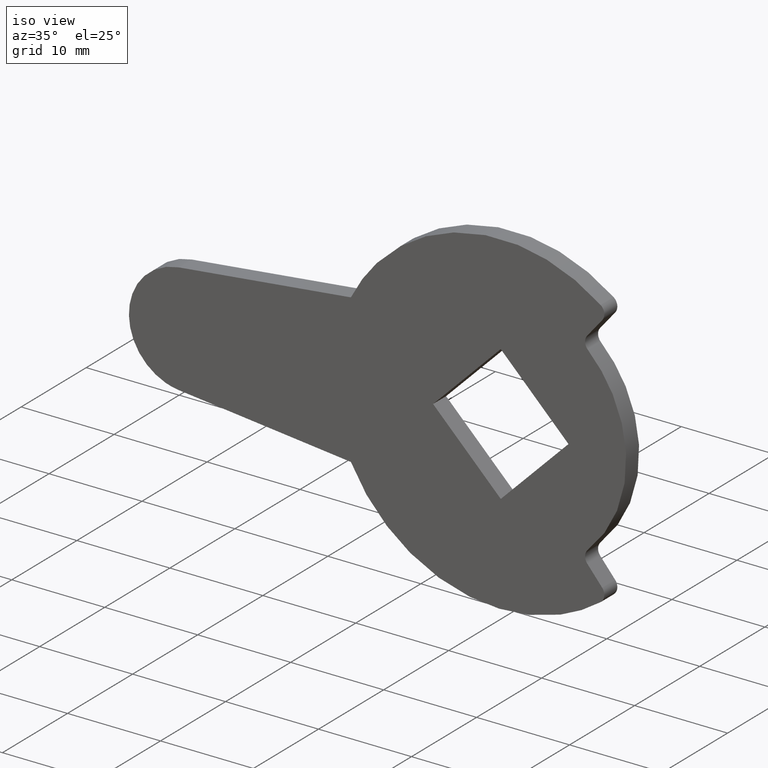
[diagram: clean part render]
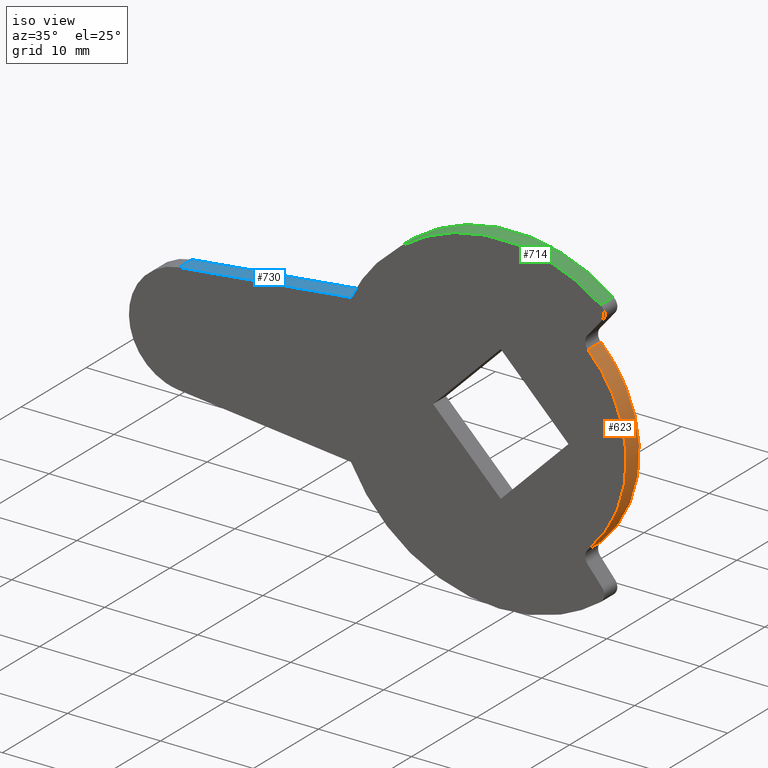
[diagram: same view with three faces highlighted in distinct colors, each labeled with its STEP entity id]
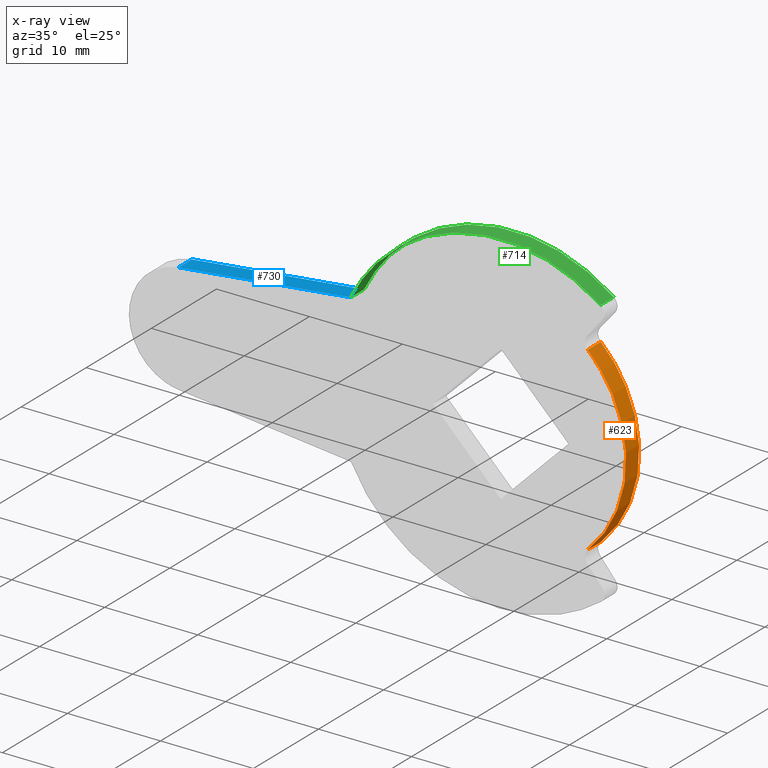
[diagram: x-ray of the same camera — body ghosted, the three highlighted faces saturated]
A machine part, iso view with three faces highlighted in distinct colors.
The next image is the same camera in x-ray (body ghosted, the three faces saturated) — at least one of them is partly hidden behind the body in this view.
Their STEP definitions:

[orange] entity #623 — the highlighted face is a freeform B-spline surface patch.
#123=CARTESIAN_POINT('',(9.370201414441402,0.0,9.718512161382490));
#124=VERTEX_POINT('',#123);
#138=CARTESIAN_POINT('',(9.370232998812860,0.0,-9.718481708830780));
#139=VERTEX_POINT('',#138);
#140=CARTESIAN_POINT('',(9.370232998812858,0.0,-9.718481708830781));
#141=CARTESIAN_POINT('',(13.500002456544811,0.0,-5.736679563118574));
#142=CARTESIAN_POINT('',(13.499993134626131,0.0,0.000021937005616));
#143=CARTESIAN_POINT('',(13.499983812707452,0.0,5.736723437129803));
#144=CARTESIAN_POINT('',(9.370201414441402,0.0,9.718512161382490));
#152=(BOUNDED_CURVE()B_SPLINE_CURVE(2,(#140,#141,#142,#143,#144),.UNSPECIFIED.,.F.,.U.)B_SPLINE_CURVE_WITH_KNOTS((3,2,3),(0.0,0.500000000000000,1.0),.UNSPECIFIED.)CURVE()GEOMETRIC_REPRESENTATION_ITEM()RATIONAL_B_SPLINE_CURVE((1.0,0.920350869292396,1.0,0.920350869292396,1.0))REPRESENTATION_ITEM(''));
#153=EDGE_CURVE('',#139,#124,#152,.T.);
#297=CARTESIAN_POINT('',(9.370232998812860,-1.999999999999890,-9.718481708830780));
#298=VERTEX_POINT('',#297);
#312=CARTESIAN_POINT('',(9.370201414441402,-1.999999999999890,9.718512161382490));
#313=VERTEX_POINT('',#312);
#314=CARTESIAN_POINT('',(9.370232998812858,-1.999999999999890,-9.718481708830781));
#315=CARTESIAN_POINT('',(13.500002456544811,-1.999999999999890,-5.736679563118574));
#316=CARTESIAN_POINT('',(13.499993134626131,-1.999999999999890,0.000021937005616));
#317=CARTESIAN_POINT('',(13.499983812707452,-1.999999999999890,5.736723437129803));
#318=CARTESIAN_POINT('',(9.370201414441402,-1.999999999999890,9.718512161382490));
#326=(BOUNDED_CURVE()B_SPLINE_CURVE(2,(#314,#315,#316,#317,#318),.UNSPECIFIED.,.F.,.U.)B_SPLINE_CURVE_WITH_KNOTS((3,2,3),(0.0,0.500000000000000,1.0),.UNSPECIFIED.)CURVE()GEOMETRIC_REPRESENTATION_ITEM()RATIONAL_B_SPLINE_CURVE((1.0,0.920350869292396,1.0,0.920350869292396,1.0))REPRESENTATION_ITEM(''));
#327=EDGE_CURVE('',#298,#313,#326,.T.);
#589=CARTESIAN_POINT('',(9.370232998812860,-1.999999999999890,-9.718481708830780));
#590=CARTESIAN_POINT('',(9.370232998812860,0.0,-9.718481708830780));
#591=QUASI_UNIFORM_CURVE('',1,(#589,#590),.UNSPECIFIED.,.F.,.U.);
#592=EDGE_CURVE('',#298,#139,#591,.T.);
#599=CARTESIAN_POINT('',(8.953331498205836,-2.049999999999888,-10.103862748279241));
#600=CARTESIAN_POINT('',(8.953331498205836,0.051249999999997,-10.103862748279241));
#601=CARTESIAN_POINT('',(20.697967435573993,-2.049999999999888,0.303454025686780));
#602=CARTESIAN_POINT('',(20.697967435573993,0.051249999999997,0.303454025686780));
#603=CARTESIAN_POINT('',(8.653281040263730,-2.049999999999887,10.361994942421267));
#604=CARTESIAN_POINT('',(8.653281040263730,0.051249999999997,10.361994942421267));
#612=(BOUNDED_SURFACE()B_SPLINE_SURFACE(1,2,((#599,#601,#603),(#600,#602,#604)),.UNSPECIFIED.,.F.,.F.,.U.)B_SPLINE_SURFACE_WITH_KNOTS((2,2),(3,3),(0.0,2.101249999999885),(0.0,24.777186746523800),.UNSPECIFIED.)GEOMETRIC_REPRESENTATION_ITEM()RATIONAL_B_SPLINE_SURFACE(((1.0,0.651097007603405,0.996717594513301),(1.0,0.651097007603405,0.996717594513301)))REPRESENTATION_ITEM('')SURFACE());
#613=ORIENTED_EDGE('',*,*,#153,.T.);
#614=CARTESIAN_POINT('',(9.370201414441402,-1.999999999999890,9.718512161382490));
#615=CARTESIAN_POINT('',(9.370201414441402,0.0,9.718512161382490));
#616=QUASI_UNIFORM_CURVE('',1,(#614,#615),.UNSPECIFIED.,.F.,.U.);
#617=EDGE_CURVE('',#313,#124,#616,.T.);
#618=ORIENTED_EDGE('',*,*,#617,.F.);
#619=ORIENTED_EDGE('',*,*,#327,.F.);
#620=ORIENTED_EDGE('',*,*,#592,.T.);
#621=EDGE_LOOP('',(#613,#618,#619,#620));
#622=FACE_OUTER_BOUND('',#621,.T.);
#623=ADVANCED_FACE('',(#622),#612,.T.);

[blue] entity #730 — the highlighted face is a freeform B-spline surface patch.
#58=CARTESIAN_POINT('',(-34.633145301686049,0.0,5.966479173585730));
#59=VERTEX_POINT('',#58);
#75=CARTESIAN_POINT('',(-16.124516390019298,0.0,7.999998199249760));
#76=VERTEX_POINT('',#75);
#77=CARTESIAN_POINT('',(-34.633145301686049,0.0,5.966479173585730));
#78=CARTESIAN_POINT('',(-16.124516390019298,0.0,7.999998199249760));
#79=QUASI_UNIFORM_CURVE('',1,(#77,#78),.UNSPECIFIED.,.F.,.U.);
#80=EDGE_CURVE('',#59,#76,#79,.T.);
#368=CARTESIAN_POINT('',(-16.124516390019298,-1.999999999999890,7.999998199249760));
#369=VERTEX_POINT('',#368);
#385=CARTESIAN_POINT('',(-34.633145301686049,-1.999999999999890,5.966479173585730));
#386=VERTEX_POINT('',#385);
#387=CARTESIAN_POINT('',(-34.633145301686049,-1.999999999999890,5.966479173585730));
#388=CARTESIAN_POINT('',(-16.124516390019298,-1.999999999999890,7.999998199249760));
#389=QUASI_UNIFORM_CURVE('',1,(#387,#388),.UNSPECIFIED.,.F.,.U.);
#390=EDGE_CURVE('',#386,#369,#389,.T.);
#705=CARTESIAN_POINT('',(-16.124516390019298,-1.999999999999890,7.999998199249760));
#706=CARTESIAN_POINT('',(-16.124516390019298,0.0,7.999998199249760));
#707=QUASI_UNIFORM_CURVE('',1,(#705,#706),.UNSPECIFIED.,.F.,.U.);
#708=EDGE_CURVE('',#369,#76,#707,.T.);
#715=CARTESIAN_POINT('',(-35.557650411221672,-2.099899996123497,5.864904997641274));
#716=CARTESIAN_POINT('',(-15.200009956643390,-2.099899996123497,8.101572520642836));
#717=CARTESIAN_POINT('',(-35.557650411221672,0.099900049767786,5.864904997641274));
#718=CARTESIAN_POINT('',(-15.200009956643390,0.099900049767786,8.101572520642836));
#719=B_SPLINE_SURFACE_WITH_KNOTS('',1,1,((#715,#717),(#716,#718)),.UNSPECIFIED.,.F.,.F.,.U.,(2,2),(2,2),(0.0,20.480141759429610),(0.0,2.199800045891283),.UNSPECIFIED.);
#720=ORIENTED_EDGE('',*,*,#80,.F.);
#721=CARTESIAN_POINT('',(-34.633145301686049,-1.999999999999890,5.966479173585730));
#722=CARTESIAN_POINT('',(-34.633145301686049,0.0,5.966479173585730));
#723=QUASI_UNIFORM_CURVE('',1,(#721,#722),.UNSPECIFIED.,.F.,.U.);
#724=EDGE_CURVE('',#386,#59,#723,.T.);
#725=ORIENTED_EDGE('',*,*,#724,.F.);
#726=ORIENTED_EDGE('',*,*,#390,.T.);
#727=ORIENTED_EDGE('',*,*,#708,.T.);
#728=EDGE_LOOP('',(#720,#725,#726,#727));
#729=FACE_OUTER_BOUND('',#728,.T.);
#730=ADVANCED_FACE('',(#729),#719,.T.);

[green] entity #714 — the highlighted face is a freeform B-spline surface patch.
#75=CARTESIAN_POINT('',(-16.124516390019298,0.0,7.999998199249760));
#76=VERTEX_POINT('',#75);
#82=CARTESIAN_POINT('',(10.739072857427660,0.0,14.445526761286960));
#83=VERTEX_POINT('',#82);
#84=CARTESIAN_POINT('',(10.739072857427670,0.0,14.445526761286979));
#85=CARTESIAN_POINT('',(3.984586888391954,0.0,19.466919151968000));
#86=CARTESIAN_POINT('',(-4.199630048120304,0.0,17.503235016676509));
#87=CARTESIAN_POINT('',(-12.383846984632562,0.0,15.539550881385031));
#88=CARTESIAN_POINT('',(-16.124516390019298,0.0,7.999998199249757));
#96=(BOUNDED_CURVE()B_SPLINE_CURVE(2,(#84,#85,#86,#87,#88),.UNSPECIFIED.,.F.,.U.)B_SPLINE_CURVE_WITH_KNOTS((3,2,3),(0.0,0.500000000000000,1.0),.UNSPECIFIED.)CURVE()GEOMETRIC_REPRESENTATION_ITEM()RATIONAL_B_SPLINE_CURVE((1.0,0.905864952288434,1.0,0.905864952288434,1.0))REPRESENTATION_ITEM(''));
#97=EDGE_CURVE('',#83,#76,#96,.T.);
#351=CARTESIAN_POINT('',(10.739072857427660,-1.999999999999890,14.445526761286960));
#352=VERTEX_POINT('',#351);
#368=CARTESIAN_POINT('',(-16.124516390019298,-1.999999999999890,7.999998199249760));
#369=VERTEX_POINT('',#368);
#370=CARTESIAN_POINT('',(10.739072857427670,-1.999999999999890,14.445526761286979));
#371=CARTESIAN_POINT('',(3.984586888391954,-1.999999999999890,19.466919151968000));
#372=CARTESIAN_POINT('',(-4.199630048120304,-1.999999999999890,17.503235016676509));
#373=CARTESIAN_POINT('',(-12.383846984632562,-1.999999999999890,15.539550881385031));
#374=CARTESIAN_POINT('',(-16.124516390019298,-1.999999999999890,7.999998199249757));
#382=(BOUNDED_CURVE()B_SPLINE_CURVE(2,(#370,#371,#372,#373,#374),.UNSPECIFIED.,.F.,.U.)B_SPLINE_CURVE_WITH_KNOTS((3,2,3),(0.0,0.500000000000000,1.0),.UNSPECIFIED.)CURVE()GEOMETRIC_REPRESENTATION_ITEM()RATIONAL_B_SPLINE_CURVE((1.0,0.905864952288434,1.0,0.905864952288434,1.0))REPRESENTATION_ITEM(''));
#383=EDGE_CURVE('',#352,#369,#382,.T.);
#680=CARTESIAN_POINT('',(10.739072857427660,-1.999999999999890,14.445526761286960));
#681=CARTESIAN_POINT('',(10.739072857427660,0.0,14.445526761286960));
#682=QUASI_UNIFORM_CURVE('',1,(#680,#681),.UNSPECIFIED.,.F.,.U.);
#683=EDGE_CURVE('',#352,#83,#682,.T.);
#690=CARTESIAN_POINT('',(11.300398543710660,-2.049999999999888,14.010780340803541));
#691=CARTESIAN_POINT('',(11.300398543710660,0.051249999999997,14.010780340803541));
#692=CARTESIAN_POINT('',(-7.583697467031023,-2.049999999999888,29.241699454702960));
#693=CARTESIAN_POINT('',(-7.583697467031023,0.051249999999997,29.241699454702960));
#694=CARTESIAN_POINT('',(-16.685314106339916,-2.049999999999888,6.752800999062409));
#695=CARTESIAN_POINT('',(-16.685314106339916,0.051249999999997,6.752800999062409));
#703=(BOUNDED_SURFACE()B_SPLINE_SURFACE(1,2,((#690,#692,#694),(#691,#693,#695)),.UNSPECIFIED.,.F.,.F.,.U.)B_SPLINE_SURFACE_WITH_KNOTS((2,2),(3,3),(0.0,2.101249999999885),(0.0,36.233484291504837),.UNSPECIFIED.)GEOMETRIC_REPRESENTATION_ITEM()RATIONAL_B_SPLINE_SURFACE(((1.0,0.595465199171336,0.998717212262314),(1.0,0.595465199171336,0.998717212262314)))REPRESENTATION_ITEM('')SURFACE());
#704=ORIENTED_EDGE('',*,*,#97,.T.);
#705=CARTESIAN_POINT('',(-16.124516390019298,-1.999999999999890,7.999998199249760));
#706=CARTESIAN_POINT('',(-16.124516390019298,0.0,7.999998199249760));
#707=QUASI_UNIFORM_CURVE('',1,(#705,#706),.UNSPECIFIED.,.F.,.U.);
#708=EDGE_CURVE('',#369,#76,#707,.T.);
#709=ORIENTED_EDGE('',*,*,#708,.F.);
#710=ORIENTED_EDGE('',*,*,#383,.F.);
#711=ORIENTED_EDGE('',*,*,#683,.T.);
#712=EDGE_LOOP('',(#704,#709,#710,#711));
#713=FACE_OUTER_BOUND('',#712,.T.);
#714=ADVANCED_FACE('',(#713),#703,.T.);